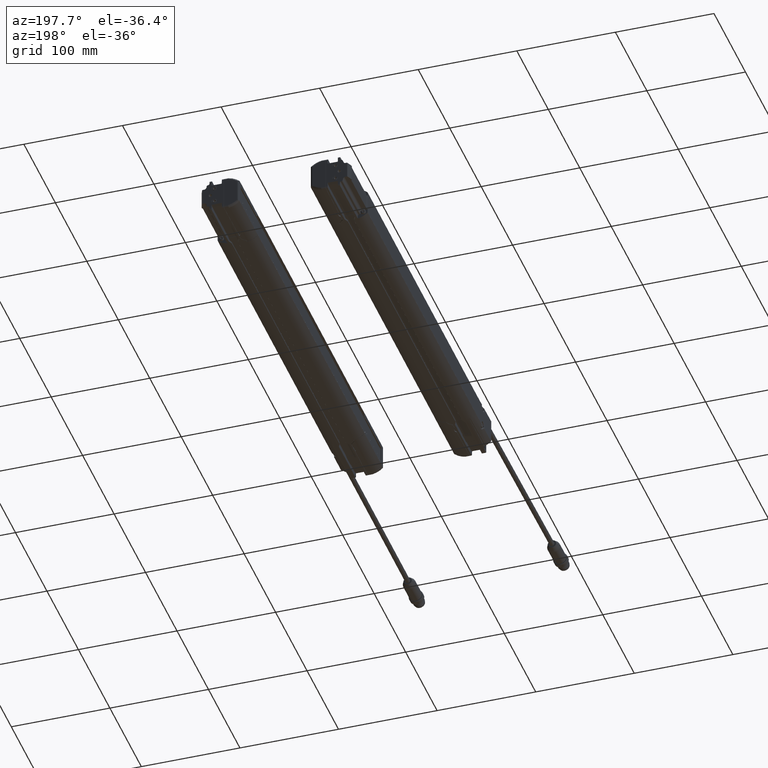
[diagram: clean part render]
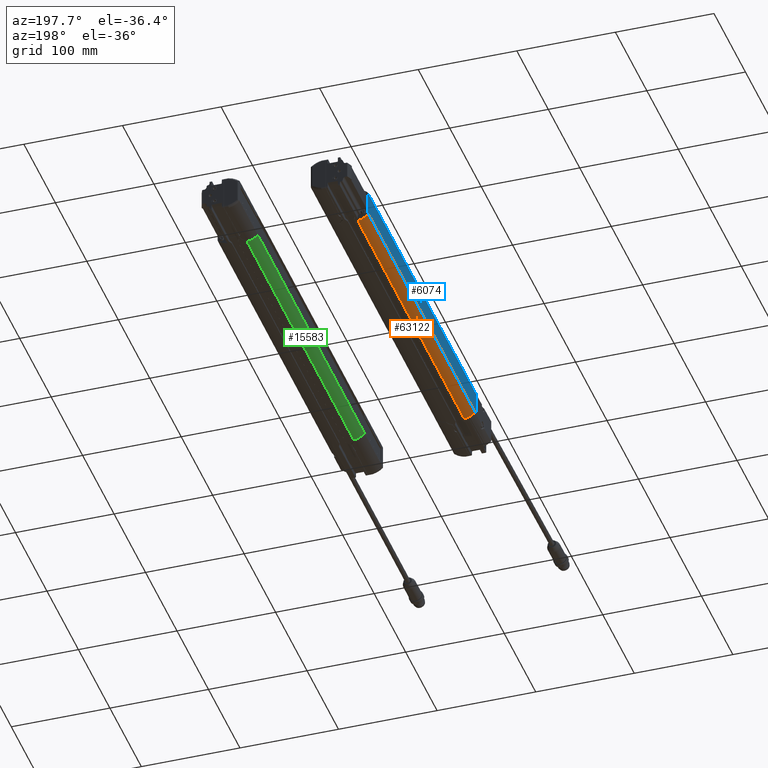
[diagram: same view with three faces highlighted in distinct colors, each labeled with its STEP entity id]
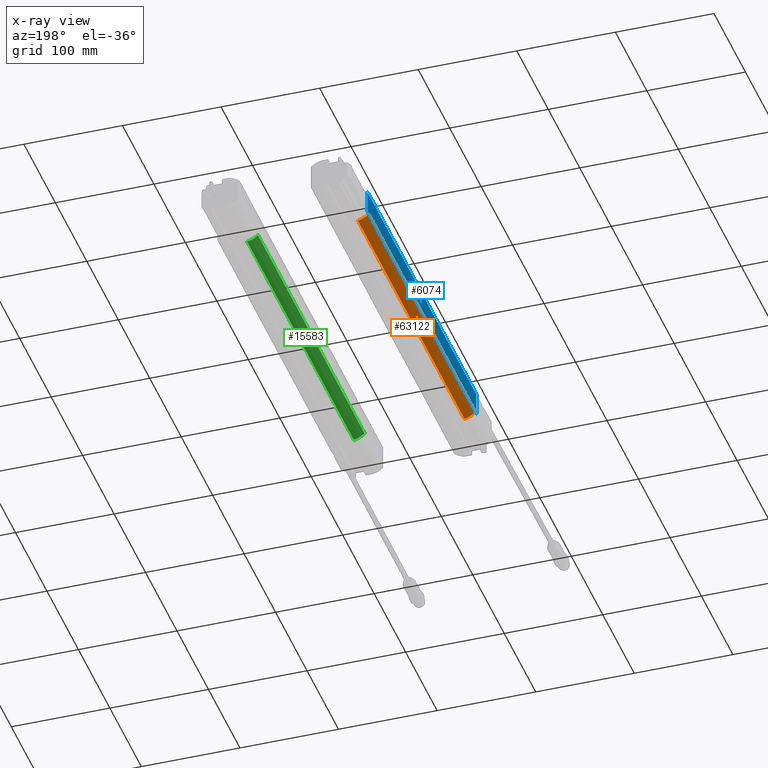
[diagram: x-ray of the same camera — body ghosted, the three highlighted faces saturated]
A machine part, auxiliary view with three faces highlighted in distinct colors.
The next image is the same camera in x-ray (body ghosted, the three faces saturated) — at least one of them is partly hidden behind the body in this view.
Their STEP definitions:

[orange] entity #63122 — the highlighted cylindrical surface (edge-blend (fillet) strip) has radius 20 mm, axis along (0, -1, 0.0003).
#1844 = CARTESIAN_POINT ( 'NONE',  ( -2.993108301093846624, -6.673387123280314803, -0.4680838002951150378 ) ) ;
#2252 = EDGE_CURVE ( 'NONE', #45778, #62054, #54752, .T. ) ;
#5237 = ORIENTED_EDGE ( 'NONE', *, *, #67545, .T. ) ;
#19679 = DIRECTION ( 'NONE',  ( 1.526111261793904519E-14, -0.9999999431153856477, 0.0003372969396878318913 ) ) ;
#20075 = LINE ( 'NONE', #36065, #65786 ) ;
#20239 = CARTESIAN_POINT ( 'NONE',  ( -2.442082008853933228, 6.673258529464212607, 0.08988335030683602955 ) ) ;
#23694 = EDGE_CURVE ( 'NONE', #25026, #73356, #61575, .T. ) ;
#25026 = VERTEX_POINT ( 'NONE', #1844 ) ;
#28339 = DIRECTION ( 'NONE',  ( 1.526111261793904519E-14, -0.9999999431153856477, 0.0003372969396878318913 ) ) ;
#30252 = AXIS2_PLACEMENT_3D ( 'NONE', #90613, #34064, #98322 ) ;
#33732 = EDGE_LOOP ( 'NONE', ( #85883, #88558, #94372, #5237 ) ) ;
#34064 = DIRECTION ( 'NONE',  ( 1.526111261793904835E-14, -0.9999999431153857588, 0.0003372969396897574344 ) ) ;
#35347 = DIRECTION ( 'NONE',  ( 1.526111261793904835E-14, -0.9999999431153857588, 0.0003372969396883694388 ) ) ;
#36065 = CARTESIAN_POINT ( 'NONE',  ( -2.563750379483213049, 123.2477948147255802, -0.7273816892191417027 ) ) ;
#36218 = DIRECTION ( 'NONE',  ( -1.526111261793904835E-14, 0.9999999431153857588, -0.0003372969396883694388 ) ) ;
#38522 = CARTESIAN_POINT ( 'NONE',  ( -2.993108301094051349, 6.673068810425020203, -0.4725855192933110516 ) ) ;
#43862 = CARTESIAN_POINT ( 'NONE',  ( -2.993108301095830814, 123.2478674940728496, -0.5119058443707520389 ) ) ;
#45778 = VERTEX_POINT ( 'NONE', #69741 ) ;
#47842 = VECTOR ( 'NONE', #19679, 39.37007874015748854 ) ;
#50757 = CARTESIAN_POINT ( 'NONE',  ( -2.442082008853732500, -6.673197404241122399, 0.09438506930503189063 ) ) ;
#54752 = CIRCLE ( 'NONE', #94266, 0.7874015748031498729 ) ;
#59673 = FACE_OUTER_BOUND ( 'NONE', #33732, .T. ) ;
#61575 = CIRCLE ( 'NONE', #74748, 0.7874015748031498729 ) ;
#62054 = VERTEX_POINT ( 'NONE', #38522 ) ;
#63122 = ADVANCED_FACE ( 'NONE', ( #59673 ), #82359, .T. ) ;
#65786 = VECTOR ( 'NONE', #28339, 39.37007874015748854 ) ;
#66719 = DIRECTION ( 'NONE',  ( 0.000000000000000000, -0.0003372969396883695472, -0.9999999431153856477 ) ) ;
#67545 = EDGE_CURVE ( 'NONE', #45778, #73356, #20075, .T. ) ;
#67571 = DIRECTION ( 'NONE',  ( 1.040834085586083862E-15, -0.0003372969396883695472, -0.9999999431153856477 ) ) ;
#69741 = CARTESIAN_POINT ( 'NONE',  ( -2.563741564821677255, 6.672996130332481179, -0.6880641139824862362 ) ) ;
#73356 = VERTEX_POINT ( 'NONE', #73665 ) ;
#73665 = CARTESIAN_POINT ( 'NONE',  ( -2.563741369281940852, -6.673459801217401122, -0.6835611035156849979 ) ) ;
#74748 = AXIS2_PLACEMENT_3D ( 'NONE', #50757, #35347, #66719 ) ;
#82359 = CYLINDRICAL_SURFACE ( 'NONE', #30252, 0.7874015748031498729 ) ;
#85883 = ORIENTED_EDGE ( 'NONE', *, *, #23694, .F. ) ;
#86095 = EDGE_CURVE ( 'NONE', #62054, #25026, #90226, .T. ) ;
#88558 = ORIENTED_EDGE ( 'NONE', *, *, #86095, .F. ) ;
#90226 = LINE ( 'NONE', #43862, #47842 ) ;
#90613 = CARTESIAN_POINT ( 'NONE',  ( -2.442082008855712694, 123.2480572131120198, 0.05056302522939495891 ) ) ;
#94266 = AXIS2_PLACEMENT_3D ( 'NONE', #20239, #36218, #67571 ) ;
#94372 = ORIENTED_EDGE ( 'NONE', *, *, #2252, .F. ) ;
#98322 = DIRECTION ( 'NONE',  ( 0.000000000000000000, -0.0003372969396897572717, -0.9999999431153856477 ) ) ;

[blue] entity #6074 — the highlighted planar face has unit normal (-1, -0, 0).
#314 = CARTESIAN_POINT ( 'NONE',  ( -2.996062992125886115, -6.673070153958937212, 0.4716499062702046996 ) ) ;
#2477 = VERTEX_POINT ( 'NONE', #43645 ) ;
#4049 = CARTESIAN_POINT ( 'NONE',  ( -2.996062992125886115, -6.673384751792342584, -0.4610529394251149382 ) ) ;
#4106 = VERTEX_POINT ( 'NONE', #314 ) ;
#4379 = ORIENTED_EDGE ( 'NONE', *, *, #19775, .F. ) ;
#5528 = VECTOR ( 'NONE', #12424, 39.37007874015748854 ) ;
#6052 = VECTOR ( 'NONE', #8170, 39.37007874015748854 ) ;
#6074 = ADVANCED_FACE ( 'NONE', ( #64599 ), #64090, .T. ) ;
#6372 = EDGE_CURVE ( 'NONE', #6567, #9469, #76899, .T. ) ;
#6567 = VERTEX_POINT ( 'NONE', #81441 ) ;
#8170 = DIRECTION ( 'NONE',  ( -1.526106932917750623E-14, 0.9999999747659882310, -0.0002246508908761115817 ) ) ;
#9351 = EDGE_CURVE ( 'NONE', #47296, #34030, #51984, .T. ) ;
#9469 = VERTEX_POINT ( 'NONE', #60624 ) ;
#9757 = B_SPLINE_CURVE_WITH_KNOTS ( 'NONE', 3,
 ( #61094, #100747, #68837, #46206 ),
 .UNSPECIFIED., .F., .F.,
 ( 4, 4 ),
 ( 0.9979186942340360078, 1.000000000000000000 ),
 .UNSPECIFIED. ) ;
#11127 = ORIENTED_EDGE ( 'NONE', *, *, #58636, .T. ) ;
#12424 = DIRECTION ( 'NONE',  ( 5.147523566978548548E-18, -0.0003372969396878318913, -0.9999999431153856477 ) ) ;
#12532 = LINE ( 'NONE', #74794, #49625 ) ;
#13263 = EDGE_CURVE ( 'NONE', #47296, #29594, #39312, .T. ) ;
#13421 = CARTESIAN_POINT ( 'NONE',  ( -2.996062653574409040, 6.673386447055571935, 0.4690976510107401909 ) ) ;
#15034 = VERTEX_POINT ( 'NONE', #98345 ) ;
#15758 = LINE ( 'NONE', #69242, #61428 ) ;
#18047 = EDGE_CURVE ( 'NONE', #40603, #2477, #12532, .T. ) ;
#18262 = ORIENTED_EDGE ( 'NONE', *, *, #63081, .T. ) ;
#18275 = DIRECTION ( 'NONE',  ( -1.000000000000000000, -1.526097653526605238E-14, 4.060244006458989323E-16 ) ) ;
#19299 = ORIENTED_EDGE ( 'NONE', *, *, #49938, .T. ) ;
#19411 = EDGE_CURVE ( 'NONE', #15034, #40603, #87026, .T. ) ;
#19504 = CARTESIAN_POINT ( 'NONE',  ( -2.996062653574409040, 6.673386447055571935, 0.4690976510107401909 ) ) ;
#19775 = EDGE_CURVE ( 'NONE', #94384, #50892, #53843, .T. ) ;
#20044 = VERTEX_POINT ( 'NONE', #53194 ) ;
#23382 = VERTEX_POINT ( 'NONE', #78758 ) ;
#23455 = DIRECTION ( 'NONE',  ( 5.147523566978548548E-18, -0.0003372969396878318913, -0.9999999431153856477 ) ) ;
#23572 = VECTOR ( 'NONE', #47166, 39.37007874015748854 ) ;
#23601 = CARTESIAN_POINT ( 'NONE',  ( -2.996062992125886115, -6.792751110173012030, 0.4736262355271519953 ) ) ;
#26700 = CARTESIAN_POINT ( 'NONE',  ( -2.996062992125886115, -6.672995063251830672, 0.6942748221831495092 ) ) ;
#26765 = VECTOR ( 'NONE', #76044, 39.37007874015748854 ) ;
#29032 = CARTESIAN_POINT ( 'NONE',  ( -2.996062653739531179, 6.673385998929133756, 0.4677980085100574836 ) ) ;
#29594 = VERTEX_POINT ( 'NONE', #38784 ) ;
#32262 = ORIENTED_EDGE ( 'NONE', *, *, #38609, .T. ) ;
#33129 = VECTOR ( 'NONE', #51870, 39.37007874015748854 ) ;
#33488 = CARTESIAN_POINT ( 'NONE',  ( -2.996062992127870306, 123.2478677002066974, -0.5048749827703843396 ) ) ;
#33718 = VECTOR ( 'NONE', #92349, 39.37007874015748854 ) ;
#34030 = VERTEX_POINT ( 'NONE', #62282 ) ;
#36233 = CARTESIAN_POINT ( 'NONE',  ( -2.996062653739531179, 6.673386218111850177, 0.4684478297481212694 ) ) ;
#36612 = LINE ( 'NONE', #51500, #5528 ) ;
#37977 = LINE ( 'NONE', #44654, #26765 ) ;
#38609 = EDGE_CURVE ( 'NONE', #83714, #4106, #97185, .T. ) ;
#38784 = CARTESIAN_POINT ( 'NONE',  ( -2.996062822932815450, 6.673385779746397795, 0.4671481872720086859 ) ) ;
#39312 = B_SPLINE_CURVE_WITH_KNOTS ( 'NONE', 3,
 ( #51630, #36233, #29032, #59844 ),
 .UNSPECIFIED., .F., .F.,
 ( 4, 4 ),
 ( 0.000000000000000000, 0.002081422433278599937 ),
 .UNSPECIFIED. ) ;
#40603 = VERTEX_POINT ( 'NONE', #4049 ) ;
#43645 = CARTESIAN_POINT ( 'NONE',  ( -2.996062661528740456, -6.673385419099625793, -0.4630024031599646039 ) ) ;
#44654 = CARTESIAN_POINT ( 'NONE',  ( -2.996062992127870306, 123.2481822980399642, 0.4278278629249355203 ) ) ;
#46206 = CARTESIAN_POINT ( 'NONE',  ( -2.996062827379976756, 6.673070524401692794, -0.4675040128667330985 ) ) ;
#46536 = CARTESIAN_POINT ( 'NONE',  ( -2.996062992126094837, 6.793696976172519442, -0.4675311988363071158 ) ) ;
#47166 = DIRECTION ( 'NONE',  ( 5.117932406754738049E-18, -0.0003372969396878353608, -0.9999999431153856477 ) ) ;
#47296 = VERTEX_POINT ( 'NONE', #13421 ) ;
#48496 = LINE ( 'NONE', #66828, #33129 ) ;
#49625 = VECTOR ( 'NONE', #98463, 39.37007874015748854 ) ;
#49710 = CARTESIAN_POINT ( 'NONE',  ( -2.996062895803618176, -6.792751110784350566, 0.4736262355325685514 ) ) ;
#49938 = EDGE_CURVE ( 'NONE', #23382, #6567, #36612, .T. ) ;
#50057 = AXIS2_PLACEMENT_3D ( 'NONE', #73344, #18275, #55829 ) ;
#50477 = CARTESIAN_POINT ( 'NONE',  ( -2.996063005481035102, -6.673069496417854296, 0.4735993489454771721 ) ) ;
#50892 = VERTEX_POINT ( 'NONE', #81305 ) ;
#51500 = CARTESIAN_POINT ( 'NONE',  ( -2.996062992126094837, 6.793622538102618513, -0.6882202612699528377 ) ) ;
#51630 = CARTESIAN_POINT ( 'NONE',  ( -2.996062653574409040, 6.673386447055571935, 0.4690976510107401909 ) ) ;
#51870 = DIRECTION ( 'NONE',  ( 5.147523566978548548E-18, -0.0003372969396878318913, -0.9999999431153856477 ) ) ;
#51984 = B_SPLINE_CURVE_WITH_KNOTS ( 'NONE', 3,
 ( #19504, #73575, #64837, #97745 ),
 .UNSPECIFIED., .F., .F.,
 ( 4, 4 ),
 ( 0.000000000000000000, 1.000000000000000000 ),
 .UNSPECIFIED. ) ;
#53194 = CARTESIAN_POINT ( 'NONE',  ( -2.996062992126090840, 6.793962511765275103, 0.3197161668137479817 ) ) ;
#53843 = LINE ( 'NONE', #54332, #23572 ) ;
#54332 = CARTESIAN_POINT ( 'NONE',  ( -2.996062957099606461, -6.793111573041339390, -0.5950548149688740240 ) ) ;
#54512 = EDGE_CURVE ( 'NONE', #94384, #83714, #85876, .T. ) ;
#55829 = DIRECTION ( 'NONE',  ( -1.526097653526605238E-14, 1.000000000000000000, 0.000000000000000000 ) ) ;
#56638 = CARTESIAN_POINT ( 'NONE',  ( -2.996062992125886115, -6.713279277071634077, -0.4629844274217299049 ) ) ;
#58636 = EDGE_CURVE ( 'NONE', #20044, #23382, #48496, .T. ) ;
#59605 = ORIENTED_EDGE ( 'NONE', *, *, #9351, .T. ) ;
#59844 = CARTESIAN_POINT ( 'NONE',  ( -2.996062822932815450, 6.673385779746397795, 0.4671481872720086859 ) ) ;
#60309 = ORIENTED_EDGE ( 'NONE', *, *, #66000, .T. ) ;
#60624 = CARTESIAN_POINT ( 'NONE',  ( -2.996062827379976756, 6.673070524401692794, -0.4675040128667330985 ) ) ;
#60872 = EDGE_CURVE ( 'NONE', #15034, #9469, #9757, .T. ) ;
#61094 = CARTESIAN_POINT ( 'NONE',  ( -2.996062992126090840, 6.673071181913011962, -0.4655546584233110630 ) ) ;
#61428 = VECTOR ( 'NONE', #23455, 39.37007874015748854 ) ;
#61446 = ORIENTED_EDGE ( 'NONE', *, *, #19411, .T. ) ;
#62282 = CARTESIAN_POINT ( 'NONE',  ( -2.996063117458653391, 6.794012878386338272, 0.4690433074505889754 ) ) ;
#63081 = EDGE_CURVE ( 'NONE', #2477, #50892, #96620, .T. ) ;
#63297 = ORIENTED_EDGE ( 'NONE', *, *, #13263, .F. ) ;
#64090 = PLANE ( 'NONE',  #50057 ) ;
#64392 = CARTESIAN_POINT ( 'NONE',  ( -2.996062992125886115, -6.753173144802755878, -0.4629664517056606976 ) ) ;
#64599 = FACE_OUTER_BOUND ( 'NONE', #84122, .T. ) ;
#64837 = CARTESIAN_POINT ( 'NONE',  ( -2.996062992126090840, 6.753804064723937017, 0.4690614219620732883 ) ) ;
#66000 = EDGE_CURVE ( 'NONE', #34030, #20044, #15758, .T. ) ;
#66828 = CARTESIAN_POINT ( 'NONE',  ( -2.996062992126094837, 6.793622538102618513, -0.6882202612699528377 ) ) ;
#68837 = CARTESIAN_POINT ( 'NONE',  ( -2.996062653739531179, 6.673070743572126595, -0.4668542280522323118 ) ) ;
#69242 = CARTESIAN_POINT ( 'NONE',  ( -2.996062992126094837, 6.793622536956239522, -0.6882202612695650368 ) ) ;
#73344 = CARTESIAN_POINT ( 'NONE',  ( -2.996062992127870306, 123.2480249991232313, -0.03852355992272429169 ) ) ;
#73575 = CARTESIAN_POINT ( 'NONE',  ( -2.996062992126090840, 6.713595251009271792, 0.4690795364746960239 ) ) ;
#74794 = CARTESIAN_POINT ( 'NONE',  ( -2.996062992125886115, -6.672995063251830672, 0.6942748221831495092 ) ) ;
#76044 = DIRECTION ( 'NONE',  ( -1.526111261793904519E-14, 0.9999999431153856477, -0.0003372969396878318913 ) ) ;
#76150 = VECTOR ( 'NONE', #87520, 39.37007874015748854 ) ;
#76899 = LINE ( 'NONE', #46536, #33718 ) ;
#77278 = ORIENTED_EDGE ( 'NONE', *, *, #18047, .T. ) ;
#78758 = CARTESIAN_POINT ( 'NONE',  ( -2.996062984786417527, 6.793747343522204218, -0.3182040122168240392 ) ) ;
#81305 = CARTESIAN_POINT ( 'NONE',  ( -2.996063138490090871, -6.793067012533425597, -0.4629484759911630110 ) ) ;
#81322 = ORIENTED_EDGE ( 'NONE', *, *, #54512, .T. ) ;
#81441 = CARTESIAN_POINT ( 'NONE',  ( -2.996062937078558974, 6.793696976012302713, -0.4675311988402739982 ) ) ;
#83714 = VERTEX_POINT ( 'NONE', #50477 ) ;
#84122 = EDGE_LOOP ( 'NONE', ( #87549, #63297, #59605, #60309, #11127, #19299, #88168, #98272, #61446, #77278, #18262, #4379, #81322, #32262 ) ) ;
#84126 = VECTOR ( 'NONE', #89490, 39.37007874015748854 ) ;
#85876 = LINE ( 'NONE', #23601, #6052 ) ;
#87026 = LINE ( 'NONE', #33488, #76150 ) ;
#87520 = DIRECTION ( 'NONE',  ( 1.526111261793904519E-14, -0.9999999431153856477, 0.0003372969396878318913 ) ) ;
#87549 = ORIENTED_EDGE ( 'NONE', *, *, #89733, .T. ) ;
#88109 = CARTESIAN_POINT ( 'NONE',  ( -2.996063138490090871, -6.793067012533425597, -0.4629484759911630110 ) ) ;
#88168 = ORIENTED_EDGE ( 'NONE', *, *, #6372, .T. ) ;
#88621 = CARTESIAN_POINT ( 'NONE',  ( -2.996062661528740456, -6.673385419099625793, -0.4630024031599646039 ) ) ;
#89490 = DIRECTION ( 'NONE',  ( -3.834305350518263400E-16, -0.0003372969396878318913, -0.9999999431153856477 ) ) ;
#89733 = EDGE_CURVE ( 'NONE', #4106, #29594, #37977, .T. ) ;
#92349 = DIRECTION ( 'NONE',  ( 1.526111309848175301E-14, -0.9999999746034609061, 0.0002253731958113635008 ) ) ;
#94384 = VERTEX_POINT ( 'NONE', #49710 ) ;
#96620 = B_SPLINE_CURVE_WITH_KNOTS ( 'NONE', 3,
 ( #88621, #56638, #64392, #88109 ),
 .UNSPECIFIED., .F., .F.,
 ( 4, 4 ),
 ( 0.000000000000000000, 1.000000000000000000 ),
 .UNSPECIFIED. ) ;
#97185 = LINE ( 'NONE', #26700, #84126 ) ;
#97745 = CARTESIAN_POINT ( 'NONE',  ( -2.996063117458653391, 6.794012878386338272, 0.4690433074505889754 ) ) ;
#98272 = ORIENTED_EDGE ( 'NONE', *, *, #60872, .F. ) ;
#98345 = CARTESIAN_POINT ( 'NONE',  ( -2.996062992126090840, 6.673071181913011962, -0.4655546584233110630 ) ) ;
#98463 = DIRECTION ( 'NONE',  ( -3.834305350518263400E-16, -0.0003372969396878318913, -0.9999999431153856477 ) ) ;
#100747 = CARTESIAN_POINT ( 'NONE',  ( -2.996062653739531179, 6.673070962742579049, -0.4662044432377693282 ) ) ;

[green] entity #15583 — the highlighted cylindrical surface (edge-blend (fillet) strip) has radius 20 mm, axis along (0, -1, 0).
#1911 = CARTESIAN_POINT ( 'NONE',  ( 1.424214533549844619, 123.2480336614173382, -0.4733823106457952790 ) ) ;
#5970 = AXIS2_PLACEMENT_3D ( 'NONE', #14737, #23449, #38921 ) ;
#8440 = VERTEX_POINT ( 'NONE', #60993 ) ;
#8613 = VECTOR ( 'NONE', #80715, 39.37007874015748143 ) ;
#14737 = CARTESIAN_POINT ( 'NONE',  ( 1.975240825789968513, 123.2480336614173382, 0.08908659095017795737 ) ) ;
#15583 = ADVANCED_FACE ( 'NONE', ( #38403 ), #30696, .T. ) ;
#17017 = CARTESIAN_POINT ( 'NONE',  ( 1.853572455164248067, 6.673228346456693494, -0.6888581677514468149 ) ) ;
#17941 = CARTESIAN_POINT ( 'NONE',  ( 1.853572455162468602, 123.2480336614173382, -0.6888581677514468149 ) ) ;
#18729 = EDGE_CURVE ( 'NONE', #30745, #40091, #84237, .T. ) ;
#23449 = DIRECTION ( 'NONE',  ( 1.526109387071235061E-14, -1.000000000000000000, 0.000000000000000000 ) ) ;
#27744 = CARTESIAN_POINT ( 'NONE',  ( 1.975240825791952926, -6.673228346456693494, 0.08908659095017795737 ) ) ;
#28402 = VECTOR ( 'NONE', #65697, 39.37007874015748143 ) ;
#30680 = CARTESIAN_POINT ( 'NONE',  ( 1.424214533551830808, -6.673228346456693494, -0.4733823106457952790 ) ) ;
#30696 = CYLINDRICAL_SURFACE ( 'NONE', #5970, 0.7874015748031496509 ) ;
#30745 = VERTEX_POINT ( 'NONE', #17017 ) ;
#30747 = ORIENTED_EDGE ( 'NONE', *, *, #61143, .T. ) ;
#32902 = LINE ( 'NONE', #17941, #8613 ) ;
#35395 = ORIENTED_EDGE ( 'NONE', *, *, #18729, .F. ) ;
#38403 = FACE_OUTER_BOUND ( 'NONE', #64877, .T. ) ;
#38921 = DIRECTION ( 'NONE',  ( 0.000000000000000000, 0.000000000000000000, 1.000000000000000000 ) ) ;
#40091 = VERTEX_POINT ( 'NONE', #40787 ) ;
#40425 = ORIENTED_EDGE ( 'NONE', *, *, #89270, .T. ) ;
#40787 = CARTESIAN_POINT ( 'NONE',  ( 1.424214533551624084, 6.673228346456693494, -0.4733823106457952790 ) ) ;
#42568 = DIRECTION ( 'NONE',  ( 0.000000000000000000, 0.000000000000000000, 1.000000000000000000 ) ) ;
#51276 = AXIS2_PLACEMENT_3D ( 'NONE', #88423, #81678, #42568 ) ;
#58924 = LINE ( 'NONE', #1911, #28402 ) ;
#60993 = CARTESIAN_POINT ( 'NONE',  ( 1.853572455164456789, -6.673228346456693494, -0.6888581677514468149 ) ) ;
#61143 = EDGE_CURVE ( 'NONE', #61443, #40091, #58924, .T. ) ;
#61443 = VERTEX_POINT ( 'NONE', #30680 ) ;
#64877 = EDGE_LOOP ( 'NONE', ( #66756, #30747, #35395, #40425 ) ) ;
#65656 = EDGE_CURVE ( 'NONE', #61443, #8440, #79511, .T. ) ;
#65697 = DIRECTION ( 'NONE',  ( -1.526109387071235061E-14, 1.000000000000000000, 0.000000000000000000 ) ) ;
#66756 = ORIENTED_EDGE ( 'NONE', *, *, #65656, .F. ) ;
#76601 = DIRECTION ( 'NONE',  ( 0.000000000000000000, 0.000000000000000000, 1.000000000000000000 ) ) ;
#79511 = CIRCLE ( 'NONE', #94301, 0.7874015748031496509 ) ;
#80715 = DIRECTION ( 'NONE',  ( 1.526109387071235061E-14, -1.000000000000000000, 0.000000000000000000 ) ) ;
#81678 = DIRECTION ( 'NONE',  ( -1.526109387071235061E-14, 1.000000000000000000, 0.000000000000000000 ) ) ;
#84237 = CIRCLE ( 'NONE', #51276, 0.7874015748031496509 ) ;
#84841 = DIRECTION ( 'NONE',  ( 1.526109387071235061E-14, -1.000000000000000000, 0.000000000000000000 ) ) ;
#88423 = CARTESIAN_POINT ( 'NONE',  ( 1.975240825791744204, 6.673228346456693494, 0.08908659095017795737 ) ) ;
#89270 = EDGE_CURVE ( 'NONE', #30745, #8440, #32902, .T. ) ;
#94301 = AXIS2_PLACEMENT_3D ( 'NONE', #27744, #84841, #76601 ) ;